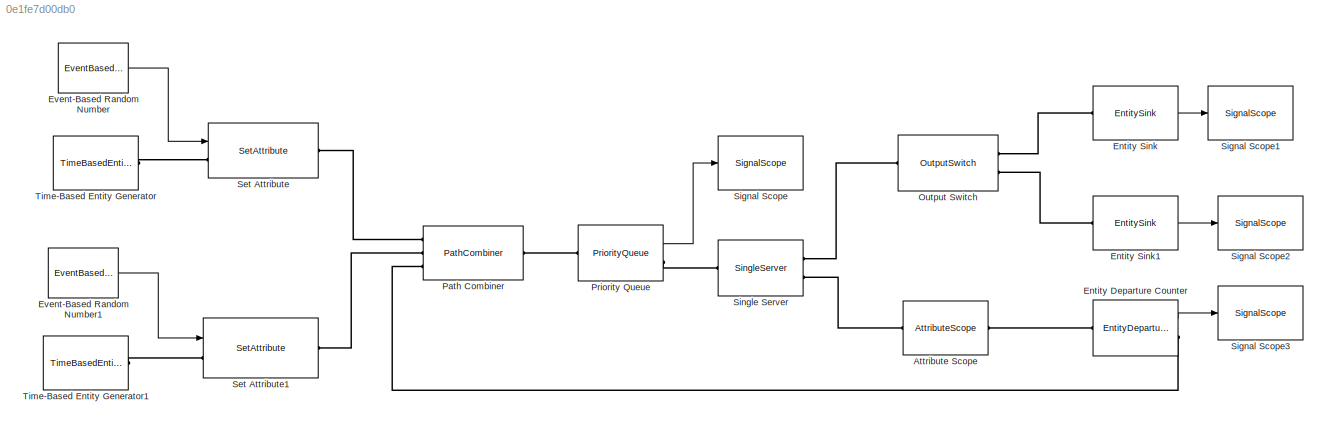
MODEL slx_0e1fe7d00db0
KIND model
BLOCK [AttributeScope] Attribute Scope
  AttributeNameY = ServiceTime
  CopyFcn = des.scope.CallbackSupport('seCopyFcn',gcbh)
  DeleteFcn = des.scope.CallbackSupport('seDeleteFcn',gcbh)
  LoadFcn = des.scope.CallbackSupport('seLoadFcn',gcbh)
  NameChangeFcn = des.scope.CallbackSupport('seNameChangeFcn',gcbh)
  OpenFcn = des.scope.CallbackSupport('seOpenFcn',gcbh)
  Ports = [0, 0, 0, 0, 0, 1, 1]
  PreSaveFcn = des.scope.CallbackSupport('sePreSaveFcn',gcbh)
  StartFcn = des.scope.CallbackSupport('seStartFcn',gcbh)
  StopFcn = des.scope.CallbackSupport('seStopFcn',gcbh)
BLOCK [EntityDepartureCounter] Entity Departure Counter
  NumberDepartedToSignal = on
  OutputPortMap = o0
  Ports = [0, 1, 0, 0, 0, 1, 1]
BLOCK [EntitySink] Entity Sink
  OutputPortMap = o0
  Ports = [0, 1, 0, 0, 0, 1]
  StatNumberArrived = on
BLOCK [EntitySink] Entity Sink1
  OutputPortMap = o0
  Ports = [0, 1, 0, 0, 0, 1]
  StatNumberArrived = on
BLOCK [EventBasedRandomNumber] Event-Based Random Number
  OutputPortMap = o0
  Ports = [0, 1]
BLOCK [EventBasedRandomNumber] Event-Based Random Number1
  OutputPortMap = o0
  Ports = [0, 1]
  meanExp = 2.5
BLOCK [OutputSwitch] Output Switch
  NumberOutputPorts = 2
  Ports = [0, 0, 0, 0, 0, 1, 2]
BLOCK [PathCombiner] Path Combiner
  Ports = [0, 0, 0, 0, 0, 3, 1]
BLOCK [PriorityQueue] Priority Queue
  OutputPortMap = o3
  Ports = [0, 1, 0, 0, 0, 1, 1]
  SortingAttributeName = Preedmted
  StatAverageQueueLength = on
BLOCK [SetAttribute] Set Attribute
  AttributeFrom = Dialog|Signal port|Dialog|Dialog
  AttributeName = Type|ServiceTime|Priority|Preedmted
  AttributeTreatAsVector = 1|1|1|1
  AttributeValue = 1|1|1|0
  EvaluatedAttributeValue = { 1;[];1;0}
  InputPortMap = u1
  Ports = [1, 0, 0, 0, 0, 1, 1]
BLOCK [SetAttribute] Set Attribute1
  AttributeFrom = Dialog|Signal port|Dialog|Dialog
  AttributeName = Type|ServiceTime|Priority|Preedmted
  AttributeTreatAsVector = 1|1|1|1
  AttributeValue = 2|1|2|0
  EvaluatedAttributeValue = { 2;[];2;0}
  InputPortMap = u1
  Ports = [1, 0, 0, 0, 0, 1, 1]
BLOCK [SignalScope] Signal Scope
  CopyFcn = des.scope.CallbackSupport('seCopyFcn',gcbh)
  DeleteFcn = des.scope.CallbackSupport('seDeleteFcn',gcbh)
  InputPortMap = u0
  LoadFcn = des.scope.CallbackSupport('seLoadFcn',gcbh)
  NameChangeFcn = des.scope.CallbackSupport('seNameChangeFcn',gcbh)
  OpenFcn = des.scope.CallbackSupport('seOpenFcn',gcbh)
  Ports = [1]
  PreSaveFcn = des.scope.CallbackSupport('sePreSaveFcn',gcbh)
  StartFcn = des.scope.CallbackSupport('seStartFcn',gcbh)
  StopFcn = des.scope.CallbackSupport('seStopFcn',gcbh)
BLOCK [SignalScope] Signal Scope1
  CopyFcn = des.scope.CallbackSupport('seCopyFcn',gcbh)
  DeleteFcn = des.scope.CallbackSupport('seDeleteFcn',gcbh)
  InputPortMap = u0
  LoadFcn = des.scope.CallbackSupport('seLoadFcn',gcbh)
  NameChangeFcn = des.scope.CallbackSupport('seNameChangeFcn',gcbh)
  OpenFcn = des.scope.CallbackSupport('seOpenFcn',gcbh)
  Ports = [1]
  PreSaveFcn = des.scope.CallbackSupport('sePreSaveFcn',gcbh)
  StartFcn = des.scope.CallbackSupport('seStartFcn',gcbh)
  StopFcn = des.scope.CallbackSupport('seStopFcn',gcbh)
BLOCK [SignalScope] Signal Scope2
  CopyFcn = des.scope.CallbackSupport('seCopyFcn',gcbh)
  DeleteFcn = des.scope.CallbackSupport('seDeleteFcn',gcbh)
  InputPortMap = u0
  LoadFcn = des.scope.CallbackSupport('seLoadFcn',gcbh)
  NameChangeFcn = des.scope.CallbackSupport('seNameChangeFcn',gcbh)
  OpenFcn = des.scope.CallbackSupport('seOpenFcn',gcbh)
  Ports = [1]
  PreSaveFcn = des.scope.CallbackSupport('sePreSaveFcn',gcbh)
  StartFcn = des.scope.CallbackSupport('seStartFcn',gcbh)
  StopFcn = des.scope.CallbackSupport('seStopFcn',gcbh)
BLOCK [SignalScope] Signal Scope3
  CopyFcn = des.scope.CallbackSupport('seCopyFcn',gcbh)
  DeleteFcn = des.scope.CallbackSupport('seDeleteFcn',gcbh)
  InputPortMap = u0
  LoadFcn = des.scope.CallbackSupport('seLoadFcn',gcbh)
  NameChangeFcn = des.scope.CallbackSupport('seNameChangeFcn',gcbh)
  OpenFcn = des.scope.CallbackSupport('seOpenFcn',gcbh)
  Ports = [1]
  PreSaveFcn = des.scope.CallbackSupport('sePreSaveFcn',gcbh)
  StartFcn = des.scope.CallbackSupport('seStartFcn',gcbh)
  StopFcn = des.scope.CallbackSupport('seStopFcn',gcbh)
BLOCK [SingleServer] Single Server
  PermitPreemption = on
  Ports = [0, 0, 0, 0, 0, 1, 2]
  ResidualAttributeName = ServiceTime
  ServiceTimeFrom = Attribute
  SortingAttributeName = Priority
  WriteToAttribute = on
BLOCK [TimeBasedEntityGenerator] Time-Based Entity Generator
  Period = 2
  Ports = [0, 0, 0, 0, 0, 0, 1]
BLOCK [TimeBasedEntityGenerator] Time-Based Entity Generator1
  Period = 5
  Ports = [0, 0, 0, 0, 0, 0, 1]
LINE Entity Departure Counter:1 -> Signal Scope3:1
LINE Entity Sink1:1 -> Signal Scope2:1
LINE Entity Sink:1 -> Signal Scope1:1
LINE Event-Based Random Number1:1 -> Set Attribute1:1
LINE Event-Based Random Number:1 -> Set Attribute:1
LINE Priority Queue:1 -> Signal Scope:1
PLINE Attribute Scope:LConn1 -- Single Server:RConn2
PLINE Attribute Scope:RConn1 -- Entity Departure Counter:LConn1
PLINE Entity Departure Counter:RConn1 -- Path Combiner:LConn3
PLINE Entity Sink1:LConn1 -- Output Switch:RConn2
PLINE Entity Sink:LConn1 -- Output Switch:RConn1
PLINE Output Switch:LConn1 -- Single Server:RConn1
PLINE Path Combiner:LConn1 -- Set Attribute:RConn1
PLINE Path Combiner:LConn2 -- Set Attribute1:RConn1
PLINE Path Combiner:RConn1 -- Priority Queue:LConn1
PLINE Priority Queue:RConn1 -- Single Server:LConn1
PLINE Set Attribute1:LConn1 -- Time-Based Entity Generator1:RConn1
PLINE Set Attribute:LConn1 -- Time-Based Entity Generator:RConn1
